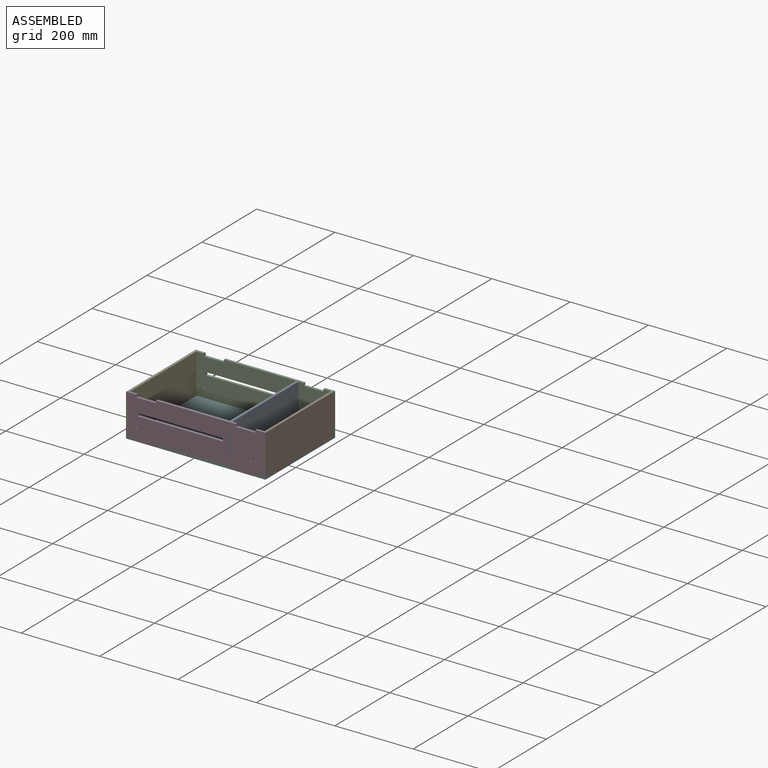
[diagram: assembled view]
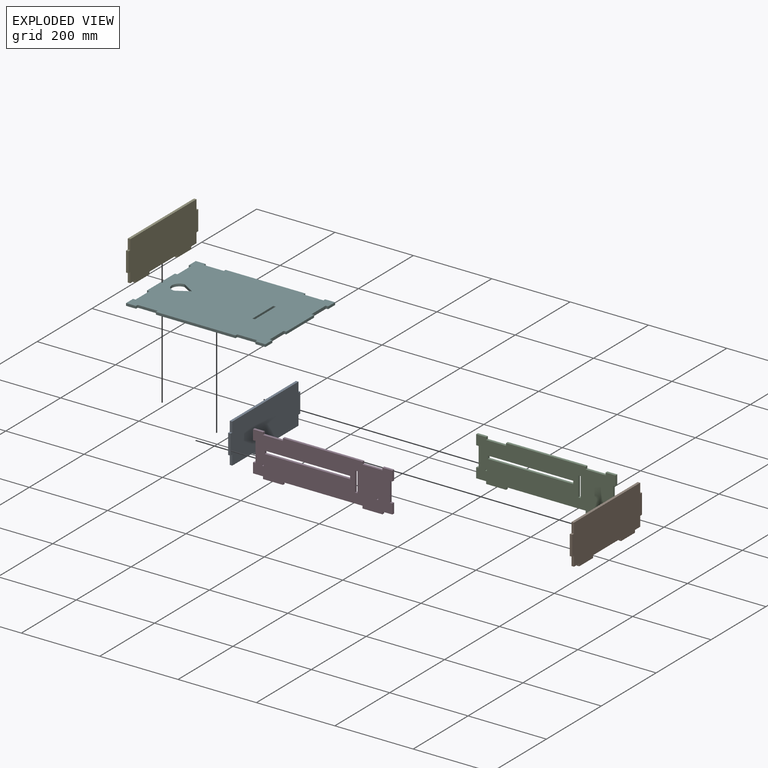
[diagram: exploded view]
GUIDED TOUR — MATED ASSEMBLY (Onshape document 5871bfc14b03d6b1c2e196c9, AutoMate assembly 5871bfc14b03d6b1c2e196c9_81adbe7311a41d3b581799d6_cefedd99a425a816bfa197bf_default)

This assembly has 6 components, labeled P0..P5 below (a component is one placed occurrence of a part; the same part can appear more than once), held together by 5 mates. A mate is a constraint between two components; its type names the relative motion it leaves free:
  FASTENED — locks the two components together rigidly (no relative motion).
Axis/direction vectors are unit vectors and 'through' points are millimeter coordinates, both in the assembly's world frame.

MATES
  1. FASTENED "Fastened 4": P1 <-> P5, direction (0.000, 1.000, 0.000) through (388.13, -21.84, -243.39) mm
  2. FASTENED "Fastened 3": P4 <-> P5, direction (0.000, 1.000, 0.000) through (38.88, 130.56, -243.39) mm
  3. FASTENED "Fastened 5": P0 <-> P5, direction (0.000, 1.000, 0.000) through (299.23, 67.06, -243.39) mm
  4. FASTENED "Fastened 1": P2 <-> P5, direction (1.000, 0.000, 0.000) through (365.91, 152.79, -243.39) mm
  5. FASTENED "Fastened 2": P3 <-> P5, direction (1.000, 0.000, 0.000) through (111.91, -94.86, -243.39) mm

ASSEMBLY ORDER
  1. P0 — the base component [order verified]
  2. P2 [order verified]
  3. P5 [order verified]
  4. P4 [order verified]
  5. P3 [order verified]
  6. P1 [order verified]
Order-tag legend:
  [order verified] — this step's position reverses a verified removal order: the component was checked to insert without passing through the ones already placed.

Of the 6 components, 3 carry the full construction recipe — the FeatureScript program that regenerates the part's solid from scratch; the rest are supplied as boundary geometry only.
Each toured component is shown spotlighted twice — in the assembled view, then in the exploded view, where a leader line traces a displaced component back to its assembled socket (saturated green if recipe-attached, orange if geometry-only; every other component desaturated gray) — followed by its recipe or geometry summary and the mates that hold it.
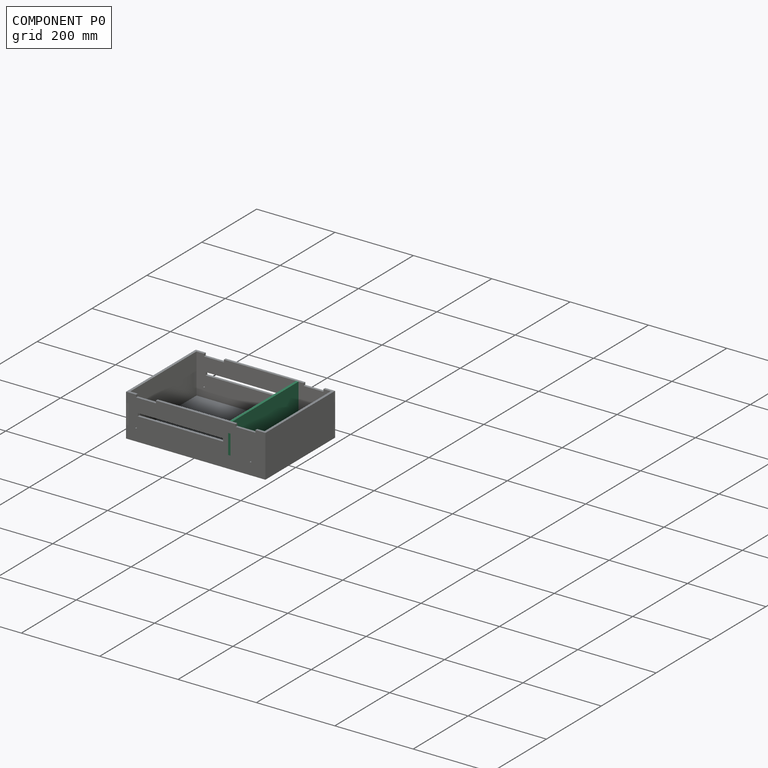
[diagram: component P0 — assembled]
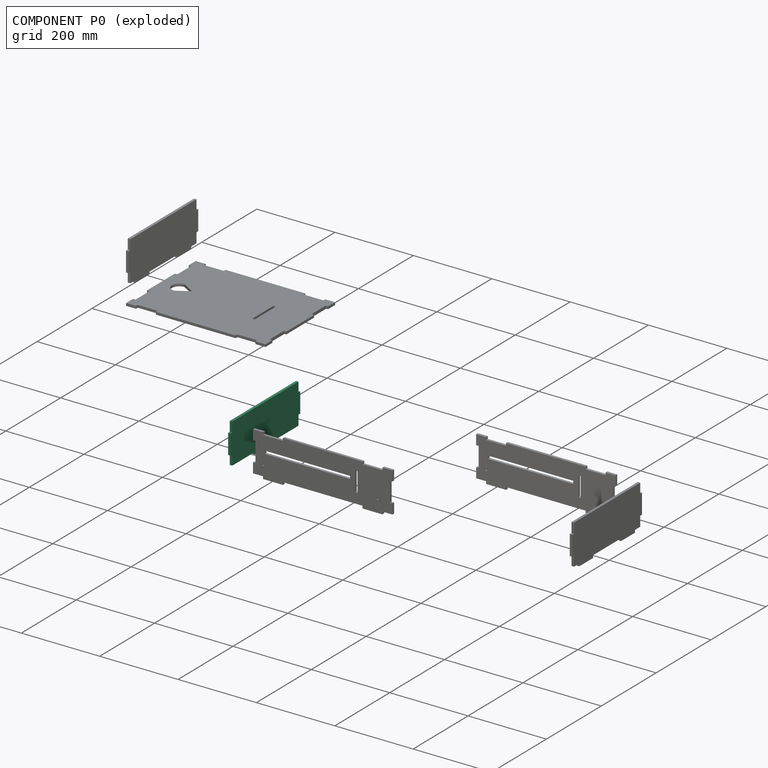
[diagram: component P0 — exploded]
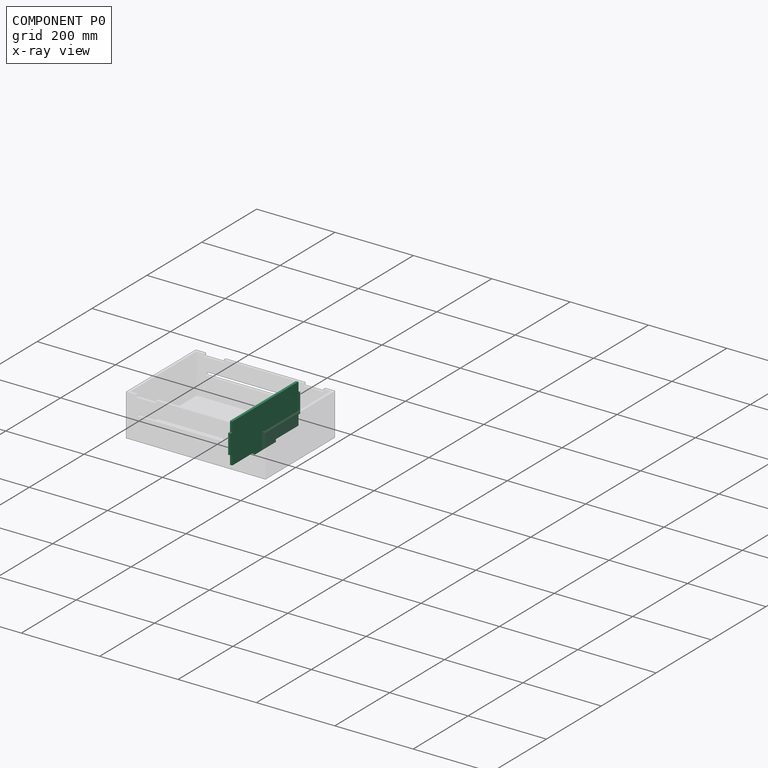
[diagram: component P0 — x-ray view]
COMPONENT P0 — recipe-attached (CADFS 00690653, mesh-verified: the recipe's output STEP matches this component's geometry to below the mesh-comparison resolution (tessellation chordal tolerance ~0.414 mm)).
Held by: FASTENED mate "Fastened 5" to P5.
Construction recipe (FeatureScript — the CAD program that rebuilds this solid; sketch coordinates are in the units given by the * unit suffixes, e.g. mm):

FeatureScript 1511;
import(path : "onshape/std/geometry.fs", version : "1511.0");
import(path : "onshape/std/common.fs", version : "1511.0");
const mm = millimeter;
const VERTEX = EntityType.VERTEX;
const EDGE = EntityType.EDGE;
const FACE = EntityType.FACE;
const BODY = EntityType.BODY;
function v(x, y){return vector(x, y);}
function OD(order){return orderDisambiguation(order);}
function OSD(set){return originalSetDisambiguation(set);}
function TD(topology){return topologyDisambiguation(topology);}
function TDD(query){return trueDependencyDisambiguation(query);}
function sQuery(a, b, c) {return sketchEntityQuery(a, b, c);}

annotation { "Feature Type Name" : "Feature", "Feature Type Description" : "" }
export const myFeature = defineFeature(function(context is Context, id is Id, definition is map)
    precondition{}
    {
        {
            var Q0;
            Q0=qCreatedBy(makeId("Front.planeOp"),FACE);
            var sketch = newSketch(context, id + "F0", { "sketchPlane" : qUnion([Q0])});
            skLineSegment(sketch, "E0.bottom", {"start": v(-120.65, 101.6) * mm, "end": v(120.65, 101.6) * mm});
            skLineSegment(sketch, "E0.top", {"start": v(-120.65, 0) * mm, "end": v(120.65, 0) * mm});
            skLineSegment(sketch, "E0.left", {"start": v(-120.65, 101.6) * mm, "end": v(-120.65, 0) * mm});
            skLineSegment(sketch, "E0.right", {"start": v(120.65, 101.6) * mm, "end": v(120.65, 0) * mm});
            skSolve(sketch);
        }
        {
            var Q0;
            Q0 = qSketchRegion(id + "F0", true);
            extrude(context, id + "F1", {"entities" : qUnion([Q0]), "depth" : 6.35 * mm, "offsetDistance" : 25.4 * mm});
        }
        {
            var Q0;
            Q0=makeQuery(id+"F1.opExtrude","CAP_FACE",FACE,{"disambiguationData":[OSD([sQuery(id+"F0.wireOp",EDGE,"E0.bottom"),sQuery(id+"F0.wireOp",EDGE,"E0.top"),sQuery(id+"F0.wireOp",EDGE,"E0.left"),sQuery(id+"F0.wireOp",EDGE,"E0.right")])],"isStart":false});
            var sketch = newSketch(context, id + "F2", { "sketchPlane" : qUnion([Q0])});
            skLineSegment(sketch, "E1.bottom", {"start": v(-38.1, 0) * mm, "end": v(38.1, 0) * mm});
            skLineSegment(sketch, "E1.top", {"start": v(-38.1, -6.35) * mm, "end": v(38.1, -6.35) * mm});
            skLineSegment(sketch, "E1.left", {"start": v(-38.1, 0) * mm, "end": v(-38.1, -6.35) * mm});
            skLineSegment(sketch, "E1.right", {"start": v(38.1, 0) * mm, "end": v(38.1, -6.35) * mm});
            skSolve(sketch);
        }
        {
            var Q0;
            Q0 = qSketchRegion(id + "F2", true);
            extrude(context, id + "F3", {"entities" : qUnion([Q0]), "operationType" : NewBodyOperationType.ADD, "oppositeDirection" : true, "depth" : 6.35 * mm, "offsetDistance" : 25.4 * mm});
        }
        {
            var Q0;
            Q0=makeQuery(id+"F3.boolean.opBoolean","MERGE",FACE,{"derivedFrom":[makeQuery(id+"F1.opExtrude","CAP_FACE",FACE,{"disambiguationData":[OSD([sQuery(id+"F0.wireOp",EDGE,"E0.bottom"),sQuery(id+"F0.wireOp",EDGE,"E0.top"),sQuery(id+"F0.wireOp",EDGE,"E0.left"),sQuery(id+"F0.wireOp",EDGE,"E0.right")])],"isStart":false}),makeQuery(id+"F3.opExtrude","CAP_FACE",FACE,{"disambiguationData":[OSD([sQuery(id+"F2.wireOp",EDGE,"E1.bottom"),sQuery(id+"F2.wireOp",EDGE,"E1.top"),sQuery(id+"F2.wireOp",EDGE,"E1.left"),sQuery(id+"F2.wireOp",EDGE,"E1.right")])],"isStart":true})]});
            var sketch = newSketch(context, id + "F4", { "sketchPlane" : qUnion([Q0])});
            skLineSegment(sketch, "E2.bottom", {"start": v(-120.65, 76.2) * mm, "end": v(-127, 76.2) * mm});
            skLineSegment(sketch, "E2.top", {"start": v(-120.65, 25.4) * mm, "end": v(-127, 25.4) * mm});
            skLineSegment(sketch, "E2.left", {"start": v(-120.65, 76.2) * mm, "end": v(-120.65, 25.4) * mm});
            skLineSegment(sketch, "E2.right", {"start": v(-127, 76.2) * mm, "end": v(-127, 25.4) * mm});
            skLineSegment(sketch, "E3.MirrorCS", {"start": v(127, 76.2) * mm, "end": v(127, 25.4) * mm});
            skLineSegment(sketch, "E4.MirrorCS", {"start": v(120.65, 76.2) * mm, "end": v(120.65, 25.4) * mm});
            skLineSegment(sketch, "E5.MirrorCS", {"start": v(120.65, 76.2) * mm, "end": v(127, 76.2) * mm});
            skLineSegment(sketch, "E6.MirrorCS", {"start": v(120.65, 25.4) * mm, "end": v(127, 25.4) * mm});
            skSolve(sketch);
        }
        {
            var Q0;
            Q0 = qSketchRegion(id + "F4", true);
            extrude(context, id + "F5", {"entities" : qUnion([Q0]), "operationType" : NewBodyOperationType.ADD, "oppositeDirection" : true, "depth" : 6.35 * mm, "offsetDistance" : 25.4 * mm});
        }
    });
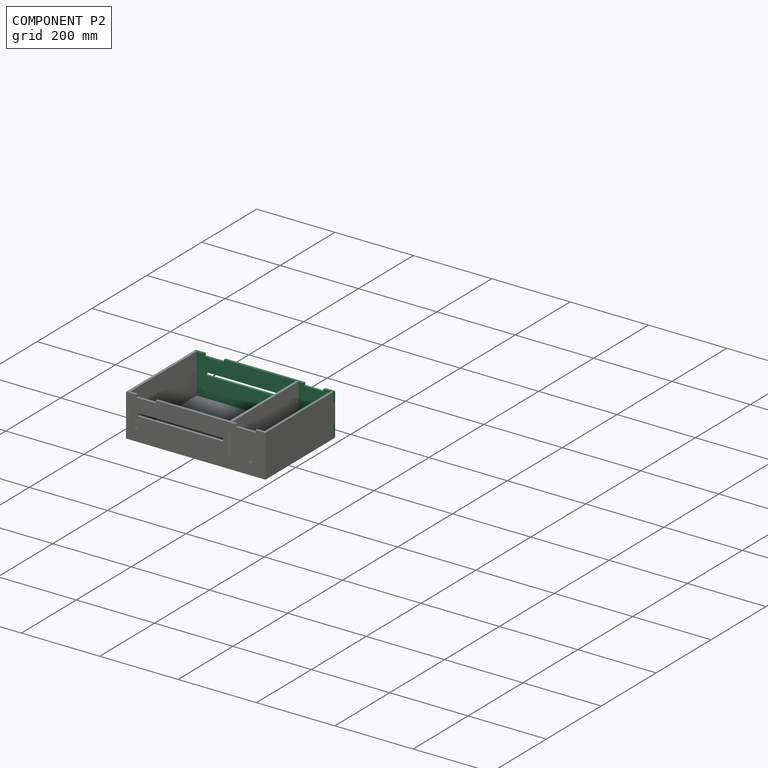
[diagram: component P2 — assembled]
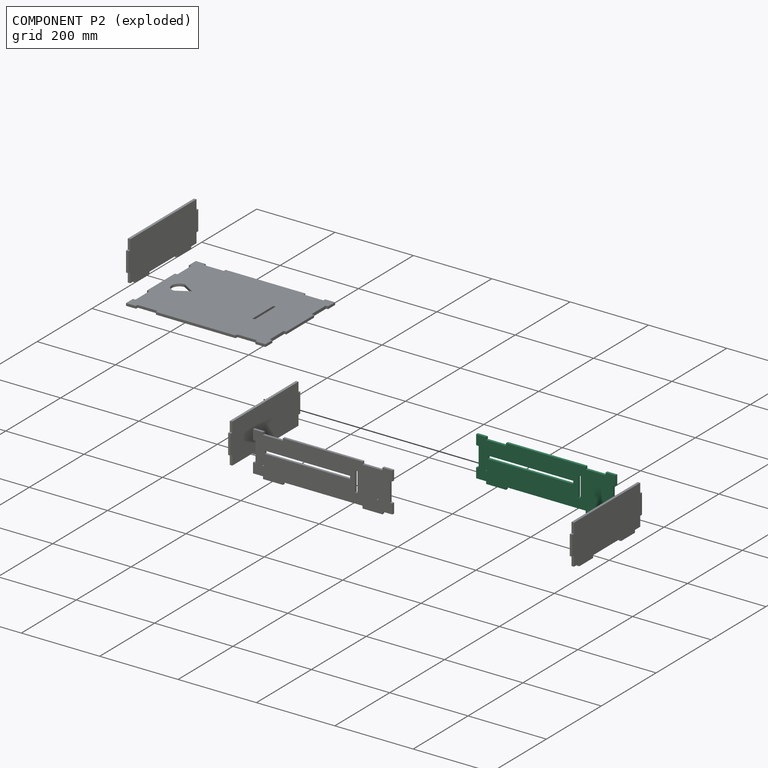
[diagram: component P2 — exploded]
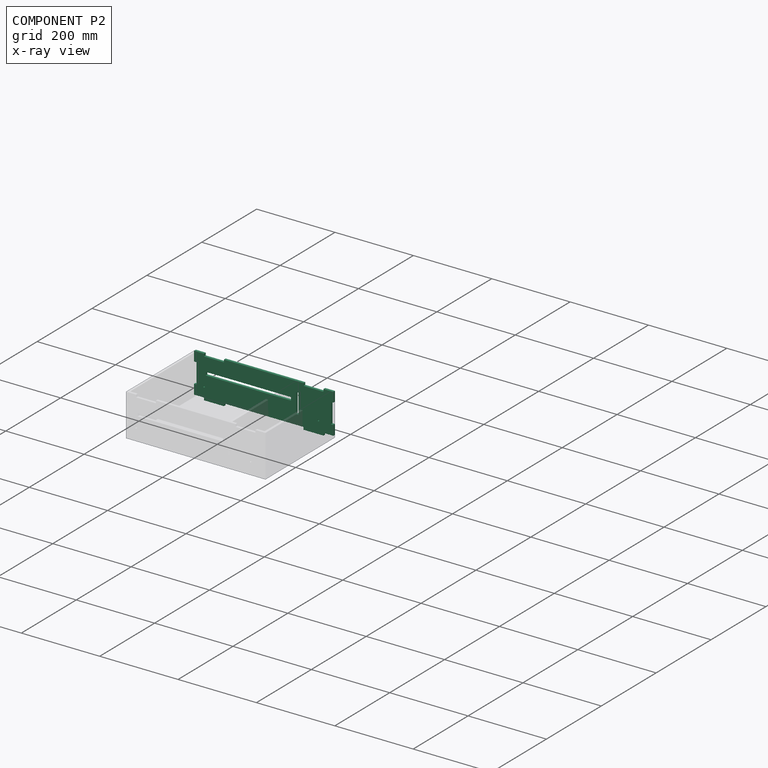
[diagram: component P2 — x-ray view]
COMPONENT P2 — recipe-attached (CADFS 00690651, mesh-verified: the recipe's output STEP matches this component's geometry to below the mesh-comparison resolution (tessellation chordal tolerance ~0.558 mm)).
Held by: FASTENED mate "Fastened 1" to P5.
Construction recipe (FeatureScript — the CAD program that rebuilds this solid; sketch coordinates are in the units given by the * unit suffixes, e.g. mm):

FeatureScript 1511;
import(path : "onshape/std/geometry.fs", version : "1511.0");
import(path : "onshape/std/common.fs", version : "1511.0");
const mm = millimeter;
const VERTEX = EntityType.VERTEX;
const EDGE = EntityType.EDGE;
const FACE = EntityType.FACE;
const BODY = EntityType.BODY;
function v(x, y){return vector(x, y);}
function OD(order){return orderDisambiguation(order);}
function OSD(set){return originalSetDisambiguation(set);}
function TD(topology){return topologyDisambiguation(topology);}
function TDD(query){return trueDependencyDisambiguation(query);}
function sQuery(a, b, c) {return sketchEntityQuery(a, b, c);}

annotation { "Feature Type Name" : "Feature", "Feature Type Description" : "" }
export const myFeature = defineFeature(function(context is Context, id is Id, definition is map)
    precondition{}
    {
        {
            var Q0;
            Q0=qCreatedBy(makeId("Right.planeOp"),FACE);
            var sketch = newSketch(context, id + "F0", { "sketchPlane" : qUnion([Q0])});
            skLineSegment(sketch, "E0.bottom", {"start": v(-177.8, 101.6) * mm, "end": v(177.8, 101.6) * mm});
            skLineSegment(sketch, "E0.top", {"start": v(-177.8, 0) * mm, "end": v(177.8, 0) * mm});
            skLineSegment(sketch, "E0.left", {"start": v(-177.8, 101.6) * mm, "end": v(-177.8, 0) * mm});
            skLineSegment(sketch, "E0.right", {"start": v(177.8, 101.6) * mm, "end": v(177.8, 0) * mm});
            skSolve(sketch);
        }
        {
            var Q0;
            Q0 = qSketchRegion(id + "F0", true);
            extrude(context, id + "F1", {"entities" : qUnion([Q0]), "depth" : 6.35 * mm, "offsetDistance" : 25.4 * mm});
        }
        {
            var Q0;
            Q0=makeQuery(id+"F1.opExtrude","CAP_FACE",FACE,{"disambiguationData":[OSD([sQuery(id+"F0.wireOp",EDGE,"E0.bottom"),sQuery(id+"F0.wireOp",EDGE,"E0.top"),sQuery(id+"F0.wireOp",EDGE,"E0.left"),sQuery(id+"F0.wireOp",EDGE,"E0.right")])],"isStart":false});
            var sketch = newSketch(context, id + "F2", { "sketchPlane" : qUnion([Q0])});
            skLineSegment(sketch, "E1.bottom", {"start": v(152.4, 0) * mm, "end": v(101.6, 0) * mm});
            skLineSegment(sketch, "E1.top", {"start": v(152.4, -6.35) * mm, "end": v(101.6, -6.35) * mm});
            skLineSegment(sketch, "E1.left", {"start": v(152.4, 0) * mm, "end": v(152.4, -6.35) * mm});
            skLineSegment(sketch, "E1.right", {"start": v(101.6, 0) * mm, "end": v(101.6, -6.35) * mm});
            skLineSegment(sketch, "E2.MirrorCS", {"start": v(-101.6, 0) * mm, "end": v(-101.6, -6.35) * mm});
            skLineSegment(sketch, "E3.MirrorCS", {"start": v(-152.4, 0) * mm, "end": v(-152.4, -6.35) * mm});
            skLineSegment(sketch, "E4.MirrorCS", {"start": v(-152.4, 0) * mm, "end": v(-101.6, 0) * mm});
            skLineSegment(sketch, "E5.MirrorCS", {"start": v(-152.4, -6.35) * mm, "end": v(-101.6, -6.35) * mm});
            skSolve(sketch);
        }
        {
            var Q0;
            Q0 = qSketchRegion(id + "F2", true);
            extrude(context, id + "F3", {"entities" : qUnion([Q0]), "oppositeDirection" : true, "depth" : 6.35 * mm, "offsetDistance" : 25.4 * mm});
        }
        {
            var Q0;
            Q0=makeQuery(id+"F1.opExtrude","CAP_FACE",FACE,{"disambiguationData":[OSD([sQuery(id+"F0.wireOp",EDGE,"E0.bottom"),sQuery(id+"F0.wireOp",EDGE,"E0.top"),sQuery(id+"F0.wireOp",EDGE,"E0.left"),sQuery(id+"F0.wireOp",EDGE,"E0.right")])],"isStart":false});
            var sketch = newSketch(context, id + "F4", { "sketchPlane" : qUnion([Q0])});
            skLineSegment(sketch, "E6", {"start": v(152.4, 0) * mm, "end": v(152.4, 25.4) * mm, "construction": true});
            skLineSegment(sketch, "E7", {"start": v(152.4, 25.4) * mm, "end": v(177.8, 25.4) * mm, "construction": true});
            skCircle(sketch, "E8", {"center": v(152.4, 25.4) * mm, "radius": 1.9 * mm});
            skLineSegment(sketch, "E9", {"start": v(-139.7, 0) * mm, "end": v(-139.7, 25.4) * mm, "construction": true});
            skLineSegment(sketch, "E10", {"start": v(-139.7, 25.4) * mm, "end": v(-177.8, 25.4) * mm, "construction": true});
            skCircle(sketch, "E11", {"center": v(-139.7, 25.4) * mm, "radius": 1.9 * mm});
            skSolve(sketch);
        }
        {
            var Q0;
            Q0 = qSketchRegion(id + "F4", true);
            extrude(context, id + "F5", {"entities" : qUnion([Q0]), "operationType" : NewBodyOperationType.REMOVE, "endBound" : BoundingType.THROUGH_ALL, "oppositeDirection" : true, "depth" : 25.4 * mm, "offsetDistance" : 25.4 * mm});
        }
        {
            var Q0;
            Q0=makeQuery(id+"F1.opExtrude","CAP_FACE",FACE,{"disambiguationData":[OSD([sQuery(id+"F0.wireOp",EDGE,"E0.bottom"),sQuery(id+"F0.wireOp",EDGE,"E0.top"),sQuery(id+"F0.wireOp",EDGE,"E0.left"),sQuery(id+"F0.wireOp",EDGE,"E0.right")])],"isStart":false});
            var sketch = newSketch(context, id + "F6", { "sketchPlane" : qUnion([Q0])});
            skLineSegment(sketch, "E12.bottom", {"start": v(177.8, 76.2) * mm, "end": v(171.45, 76.2) * mm});
            skLineSegment(sketch, "E12.top", {"start": v(177.8, 25.4) * mm, "end": v(171.45, 25.4) * mm});
            skLineSegment(sketch, "E12.left", {"start": v(177.8, 76.2) * mm, "end": v(177.8, 25.4) * mm});
            skLineSegment(sketch, "E12.right", {"start": v(171.45, 76.2) * mm, "end": v(171.45, 25.4) * mm});
            skLineSegment(sketch, "E13.MirrorCS", {"start": v(-177.8, 76.2) * mm, "end": v(-171.45, 76.2) * mm});
            skLineSegment(sketch, "E14.MirrorCS", {"start": v(-177.8, 25.4) * mm, "end": v(-171.45, 25.4) * mm});
            skLineSegment(sketch, "E15.MirrorCS", {"start": v(-177.8, 76.2) * mm, "end": v(-177.8, 25.4) * mm});
            skLineSegment(sketch, "E16.MirrorCS", {"start": v(-171.45, 76.2) * mm, "end": v(-171.45, 25.4) * mm});
            skSolve(sketch);
        }
        {
            var Q0;
            Q0 = qSketchRegion(id + "F6", true);
            extrude(context, id + "F7", {"entities" : qUnion([Q0]), "operationType" : NewBodyOperationType.REMOVE, "oppositeDirection" : true, "depth" : 25.4 * mm, "offsetDistance" : 25.4 * mm});
        }
        {
            var Q0;
            Q0=makeQuery(id+"F3.opExtrude","SWEPT_BODY",BODY,{"disambiguationData":[OSD([sQuery(id+"F2.wireOp",EDGE,"E2.MirrorCS"),sQuery(id+"F2.wireOp",EDGE,"E3.MirrorCS"),sQuery(id+"F2.wireOp",EDGE,"E4.MirrorCS"),sQuery(id+"F2.wireOp",EDGE,"E5.MirrorCS")])]});
            var Q1;
            Q1=makeQuery(id+"F1.opExtrude","SWEPT_BODY",BODY,{"disambiguationData":[OSD([sQuery(id+"F0.wireOp",EDGE,"E0.bottom"),sQuery(id+"F0.wireOp",EDGE,"E0.top"),sQuery(id+"F0.wireOp",EDGE,"E0.left"),sQuery(id+"F0.wireOp",EDGE,"E0.right")])]});
            var Q2;
            Q2=makeQuery(id+"F3.opExtrude","SWEPT_BODY",BODY,{"disambiguationData":[OSD([sQuery(id+"F2.wireOp",EDGE,"E1.bottom"),sQuery(id+"F2.wireOp",EDGE,"E1.top"),sQuery(id+"F2.wireOp",EDGE,"E1.left"),sQuery(id+"F2.wireOp",EDGE,"E1.right")])]});
            booleanBodies(context, id + "F8", {"operationType" : BooleanOperationType.UNION, "tools" : qUnion([Q0, Q1, Q2])});
        }
        {
            var Q0;
            Q0=makeQuery(id+"F8.opBoolean","MERGE",FACE,{"derivedFrom":[makeQuery(id+"F3.opExtrude","CAP_FACE",FACE,{"disambiguationData":[OSD([sQuery(id+"F2.wireOp",EDGE,"E1.bottom"),sQuery(id+"F2.wireOp",EDGE,"E1.top"),sQuery(id+"F2.wireOp",EDGE,"E1.left"),sQuery(id+"F2.wireOp",EDGE,"E1.right")])],"isStart":true}),makeQuery(id+"F3.opExtrude","CAP_FACE",FACE,{"disambiguationData":[OSD([sQuery(id+"F2.wireOp",EDGE,"E2.MirrorCS"),sQuery(id+"F2.wireOp",EDGE,"E3.MirrorCS"),sQuery(id+"F2.wireOp",EDGE,"E4.MirrorCS"),sQuery(id+"F2.wireOp",EDGE,"E5.MirrorCS")])],"isStart":true}),makeQuery(id+"F1.opExtrude","CAP_FACE",FACE,{"disambiguationData":[OSD([sQuery(id+"F0.wireOp",EDGE,"E0.bottom"),sQuery(id+"F0.wireOp",EDGE,"E0.top"),sQuery(id+"F0.wireOp",EDGE,"E0.left"),sQuery(id+"F0.wireOp",EDGE,"E0.right")])],"isStart":false})]});
            var sketch = newSketch(context, id + "F9", { "sketchPlane" : qUnion([Q0])});
            skLineSegment(sketch, "E17.bottom", {"start": v(-88.9, 76.2) * mm, "end": v(-82.55, 76.2) * mm});
            skLineSegment(sketch, "E17.top", {"start": v(-88.9, 25.4) * mm, "end": v(-82.55, 25.4) * mm});
            skLineSegment(sketch, "E17.left", {"start": v(-88.9, 76.2) * mm, "end": v(-88.9, 25.4) * mm});
            skLineSegment(sketch, "E17.right", {"start": v(-82.55, 76.2) * mm, "end": v(-82.55, 25.4) * mm});
            skSolve(sketch);
        }
        {
            var Q0;
            Q0 = qSketchRegion(id + "F9", true);
            extrude(context, id + "F10", {"entities" : qUnion([Q0]), "operationType" : NewBodyOperationType.REMOVE, "oppositeDirection" : true, "depth" : 25.4 * mm, "offsetDistance" : 25.4 * mm});
        }
        {
            var Q0;
            Q0=makeQuery(id+"F8.opBoolean","MERGE",FACE,{"derivedFrom":[makeQuery(id+"F3.opExtrude","CAP_FACE",FACE,{"disambiguationData":[OSD([sQuery(id+"F2.wireOp",EDGE,"E1.bottom"),sQuery(id+"F2.wireOp",EDGE,"E1.top"),sQuery(id+"F2.wireOp",EDGE,"E1.left"),sQuery(id+"F2.wireOp",EDGE,"E1.right")])],"isStart":true}),makeQuery(id+"F3.opExtrude","CAP_FACE",FACE,{"disambiguationData":[OSD([sQuery(id+"F2.wireOp",EDGE,"E2.MirrorCS"),sQuery(id+"F2.wireOp",EDGE,"E3.MirrorCS"),sQuery(id+"F2.wireOp",EDGE,"E4.MirrorCS"),sQuery(id+"F2.wireOp",EDGE,"E5.MirrorCS")])],"isStart":true}),makeQuery(id+"F1.opExtrude","CAP_FACE",FACE,{"disambiguationData":[OSD([sQuery(id+"F0.wireOp",EDGE,"E0.bottom"),sQuery(id+"F0.wireOp",EDGE,"E0.top"),sQuery(id+"F0.wireOp",EDGE,"E0.left"),sQuery(id+"F0.wireOp",EDGE,"E0.right")])],"isStart":false})]});
            var sketch = newSketch(context, id + "F11", { "sketchPlane" : qUnion([Q0])});
            skLineSegment(sketch, "E18.bottom", {"start": v(-152.4, 101.6) * mm, "end": v(-101.6, 101.6) * mm});
            skLineSegment(sketch, "E18.top", {"start": v(-152.4, 95.25) * mm, "end": v(-101.6, 95.25) * mm});
            skLineSegment(sketch, "E18.left", {"start": v(-152.4, 101.6) * mm, "end": v(-152.4, 95.25) * mm});
            skLineSegment(sketch, "E18.right", {"start": v(-101.6, 101.6) * mm, "end": v(-101.6, 95.25) * mm});
            skLineSegment(sketch, "E19.MirrorCS", {"start": v(101.6, 101.6) * mm, "end": v(101.6, 95.25) * mm});
            skLineSegment(sketch, "E20.MirrorCS", {"start": v(152.4, 101.6) * mm, "end": v(152.4, 95.25) * mm});
            skLineSegment(sketch, "E21.MirrorCS", {"start": v(152.4, 95.25) * mm, "end": v(101.6, 95.25) * mm});
            skLineSegment(sketch, "E22.MirrorCS", {"start": v(152.4, 101.6) * mm, "end": v(101.6, 101.6) * mm});
            skSolve(sketch);
        }
        {
            var Q0;
            Q0 = qSketchRegion(id + "F11", true);
            extrude(context, id + "F12", {"entities" : qUnion([Q0]), "operationType" : NewBodyOperationType.REMOVE, "oppositeDirection" : true, "depth" : 25.4 * mm, "offsetDistance" : 25.4 * mm});
        }
        {
            var Q0;
            Q0=makeQuery(id+"F8.opBoolean","MERGE",FACE,{"derivedFrom":[makeQuery(id+"F3.opExtrude","CAP_FACE",FACE,{"disambiguationData":[OSD([sQuery(id+"F2.wireOp",EDGE,"E1.bottom"),sQuery(id+"F2.wireOp",EDGE,"E1.top"),sQuery(id+"F2.wireOp",EDGE,"E1.left"),sQuery(id+"F2.wireOp",EDGE,"E1.right")])],"isStart":true}),makeQuery(id+"F3.opExtrude","CAP_FACE",FACE,{"disambiguationData":[OSD([sQuery(id+"F2.wireOp",EDGE,"E2.MirrorCS"),sQuery(id+"F2.wireOp",EDGE,"E3.MirrorCS"),sQuery(id+"F2.wireOp",EDGE,"E4.MirrorCS"),sQuery(id+"F2.wireOp",EDGE,"E5.MirrorCS")])],"isStart":true}),makeQuery(id+"F1.opExtrude","CAP_FACE",FACE,{"disambiguationData":[OSD([sQuery(id+"F0.wireOp",EDGE,"E0.bottom"),sQuery(id+"F0.wireOp",EDGE,"E0.top"),sQuery(id+"F0.wireOp",EDGE,"E0.left"),sQuery(id+"F0.wireOp",EDGE,"E0.right")])],"isStart":false})]});
            var sketch = newSketch(context, id + "F13", { "sketchPlane" : qUnion([Q0])});
            skLineSegment(sketch, "E23.bottom", {"start": v(-69.85, 60.32) * mm, "end": v(147.96, 60.33) * mm});
            skLineSegment(sketch, "E23.top", {"start": v(-69.85, 52.7) * mm, "end": v(147.96, 52.7) * mm});
            skLineSegment(sketch, "E23.left", {"start": v(-69.85, 60.32) * mm, "end": v(-69.85, 52.7) * mm});
            skLineSegment(sketch, "E23.right", {"start": v(147.96, 60.33) * mm, "end": v(147.96, 52.7) * mm});
            skSolve(sketch);
        }
        {
            var Q0;
            Q0 = qSketchRegion(id + "F13", true);
            extrude(context, id + "F14", {"entities" : qUnion([Q0]), "operationType" : NewBodyOperationType.REMOVE, "oppositeDirection" : true, "depth" : 25.4 * mm, "offsetDistance" : 25.4 * mm});
        }
    });
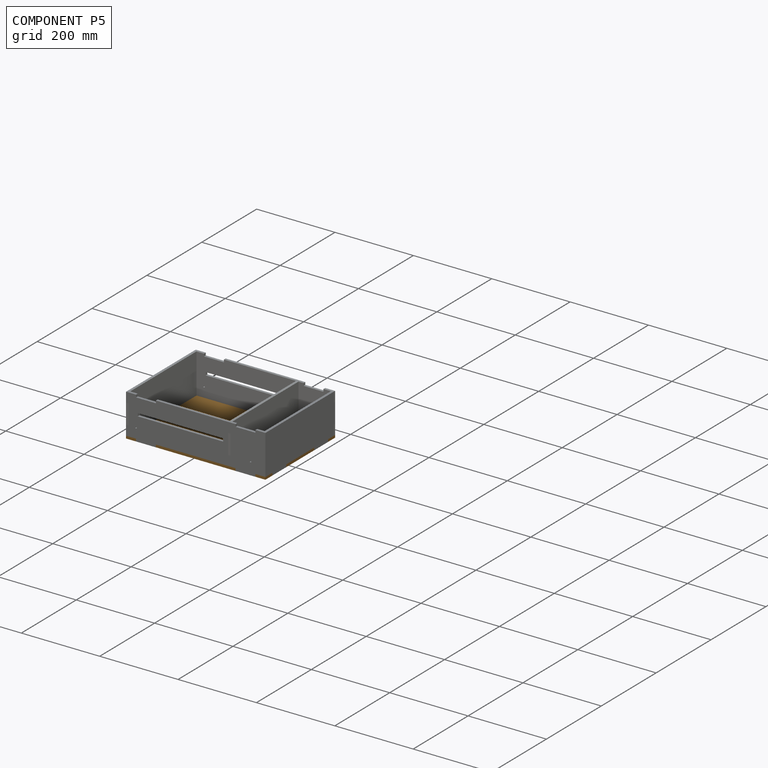
[diagram: component P5 — assembled]
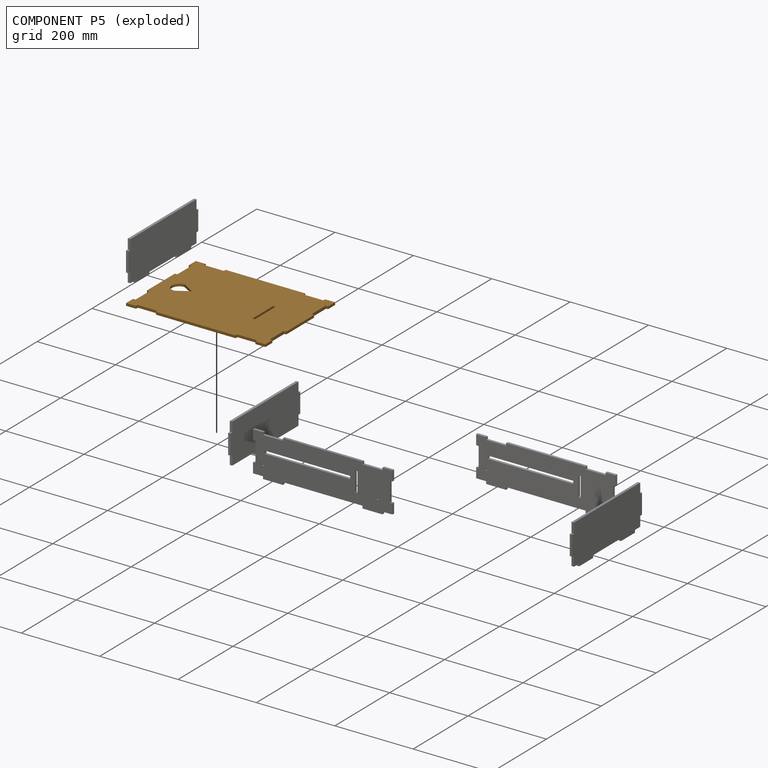
[diagram: component P5 — exploded]
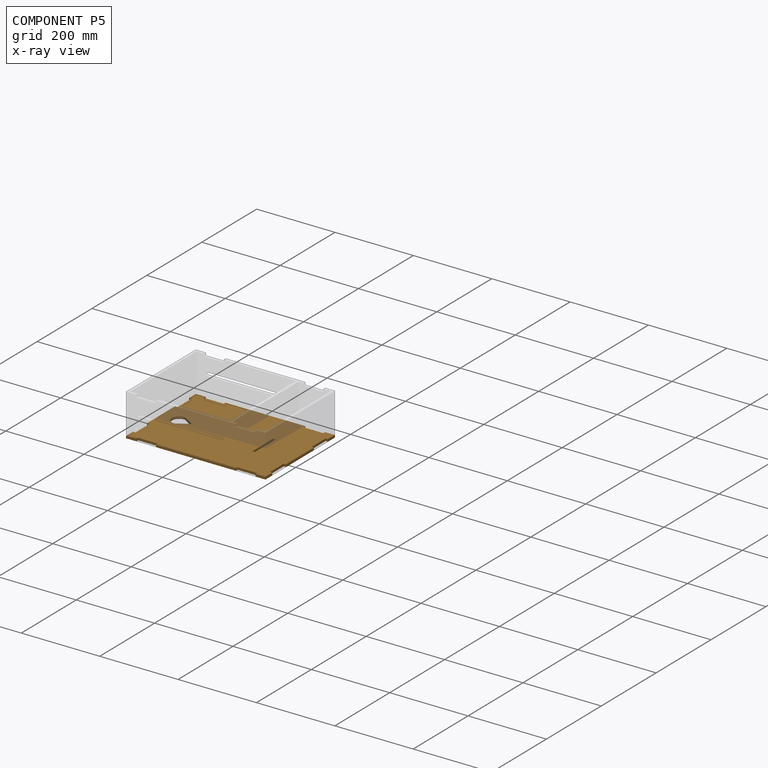
[diagram: component P5 — x-ray view]
COMPONENT P5 — geometry summary (no construction recipe available for this part):
  bounding box: 355.6 x 254.0 x 6.4 mm
  B-rep topology: 1 solid, 45 faces, 258 edges
  volume: 546533 mm^3 (95% of its bounding box)
  symmetry: 2-fold rotationally symmetric about the y axis; mirror-symmetric across its x mid-plane, z mid-plane
Held by: FASTENED mate "Fastened 4" to P1; FASTENED mate "Fastened 3" to P4; FASTENED mate "Fastened 5" to P0; FASTENED mate "Fastened 1" to P2; FASTENED mate "Fastened 2" to P3.
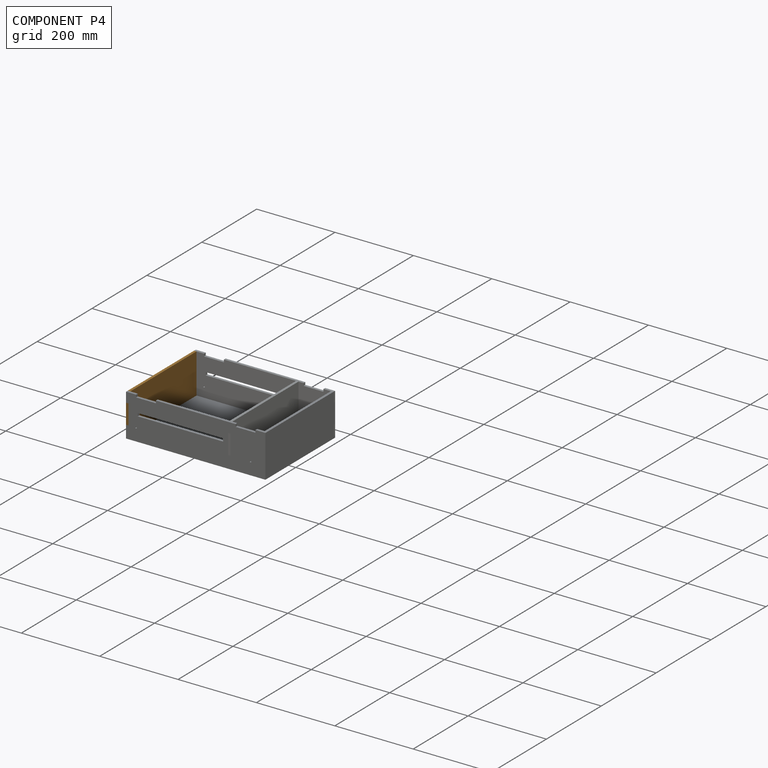
[diagram: component P4 — assembled]
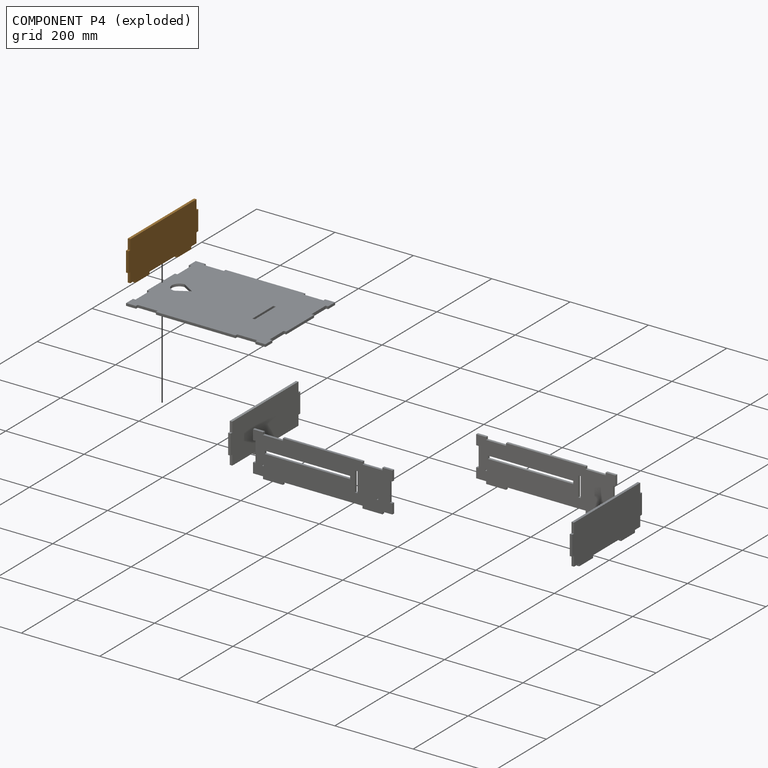
[diagram: component P4 — exploded]
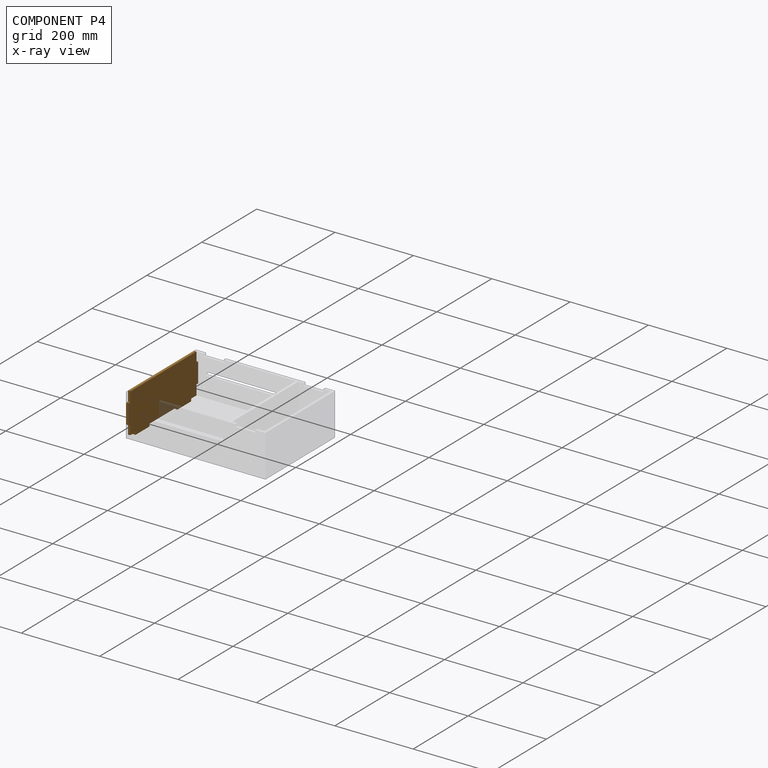
[diagram: component P4 — x-ray view]
COMPONENT P4 — geometry summary (no construction recipe available for this part):
  bounding box: 254.0 x 108.0 x 6.4 mm
  B-rep topology: 1 solid, 22 faces, 120 edges
  volume: 163871 mm^3 (94% of its bounding box)
  symmetry: 2-fold rotationally symmetric about the z axis; mirror-symmetric across its x mid-plane, y mid-plane
Held by: FASTENED mate "Fastened 3" to P5.
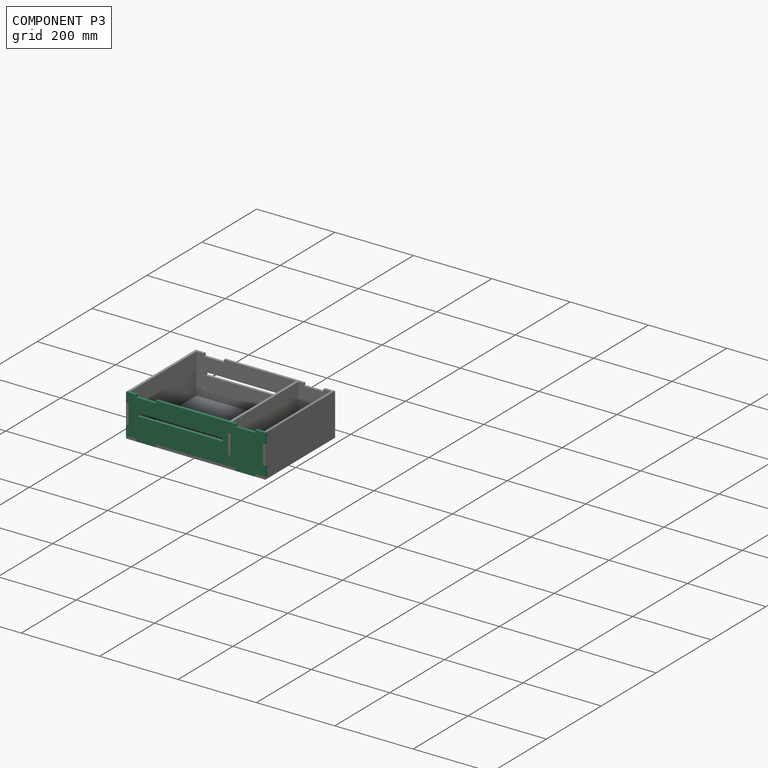
[diagram: component P3 — assembled]
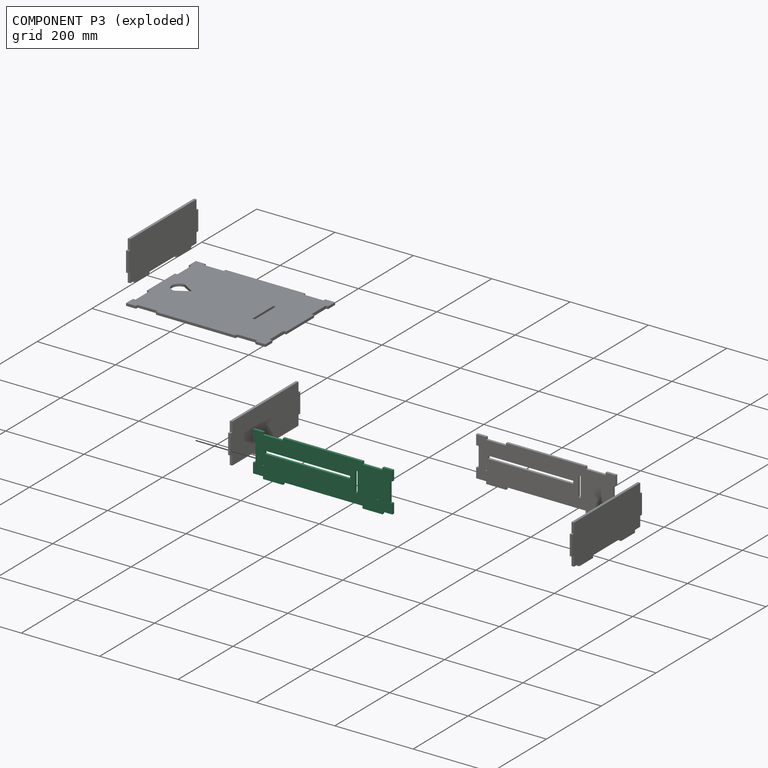
[diagram: component P3 — exploded]
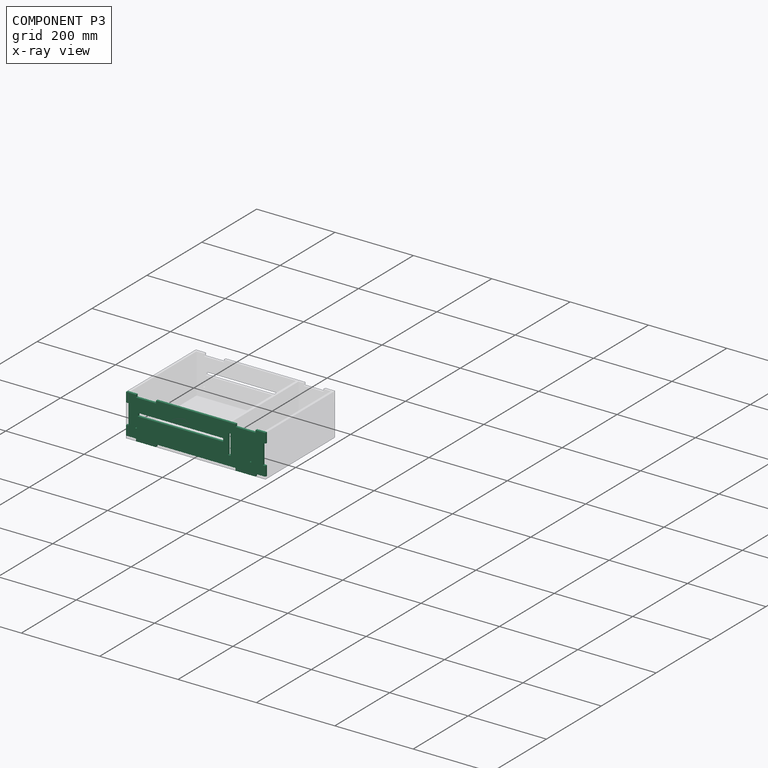
[diagram: component P3 — x-ray view]
COMPONENT P3 — same part as P2 (CADFS 00690651); its construction recipe is shown at P2.
Held by: FASTENED mate "Fastened 2" to P5.
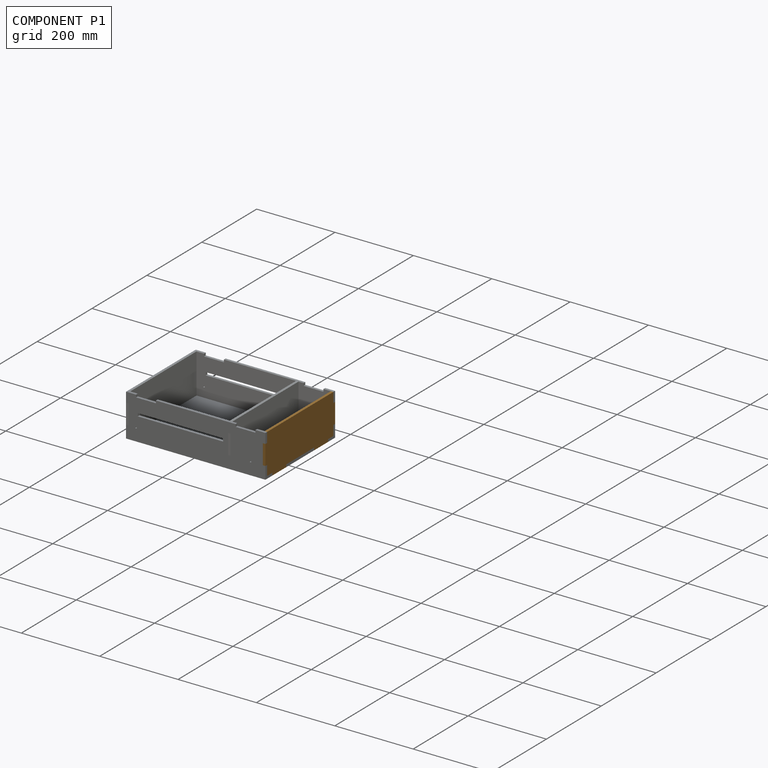
[diagram: component P1 — assembled]
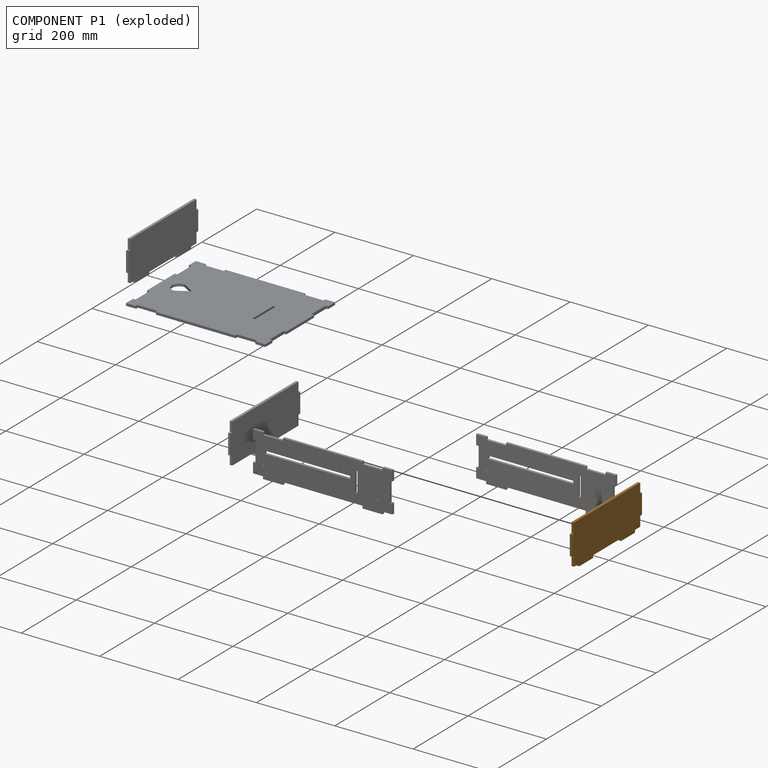
[diagram: component P1 — exploded]
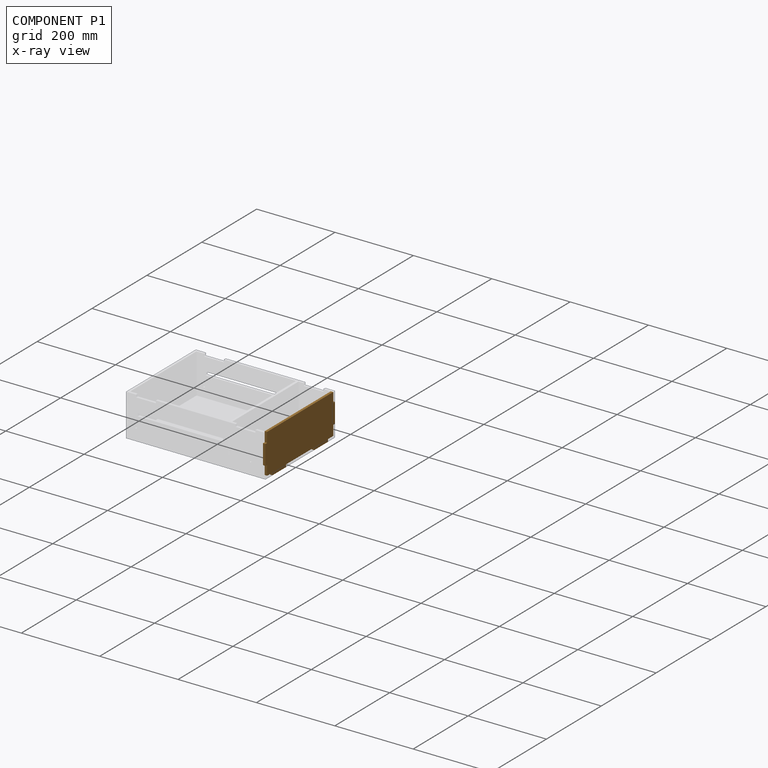
[diagram: component P1 — x-ray view]
COMPONENT P1 — geometry summary (no construction recipe available for this part):
  bounding box: 254.0 x 108.0 x 6.4 mm
  B-rep topology: 1 solid, 22 faces, 120 edges
  volume: 163871 mm^3 (94% of its bounding box)
  symmetry: 2-fold rotationally symmetric about the z axis; mirror-symmetric across its x mid-plane, y mid-plane
Held by: FASTENED mate "Fastened 4" to P5.
PROVENANCE & LICENSES
Assembly (occurrences, transforms, mates, per-part STEP geometry): AutoMate dataset, Zenodo record 7776208, CC0.
Construction recipes: CADFS (HuggingFace VladPyatov/CADFS, CC-BY-4.0, layered over the ABC dataset), FeatureScript reconstruction programs keyed by ABC model id.
Join: ABC meta listings map ABC model id -> Onshape documentId; within a shared document, parts are matched by geometric signature (bounding-box dims + volume at 0.1% relative tolerance, exact B-rep face/solid counts).
Verification: 3 of this assembly's 6 components carry a recipe attachment, and every attachment is mesh-verified: the CADFS STEP and the AutoMate member STEP were compared as meshes in their shared local frame (symmetric sampled-point-to-mesh distance); worst across the 3 attachments: below the mesh-comparison resolution (tessellation chordal tolerance ~0.558 mm) on a 372 mm part.
Renders: orthographic iso camera (az 35 / el 25); the floor grid conveys scale (grid pitch printed in each image; no ruler). In the exploded view each component is displaced by its stored offset vector: the offsets alone carry the explosion direction (mate normal/axis signs are not orientation cues and do not encode it), and separation distances are assigned per mate-chain, not proportionally to assembly-order depth.
